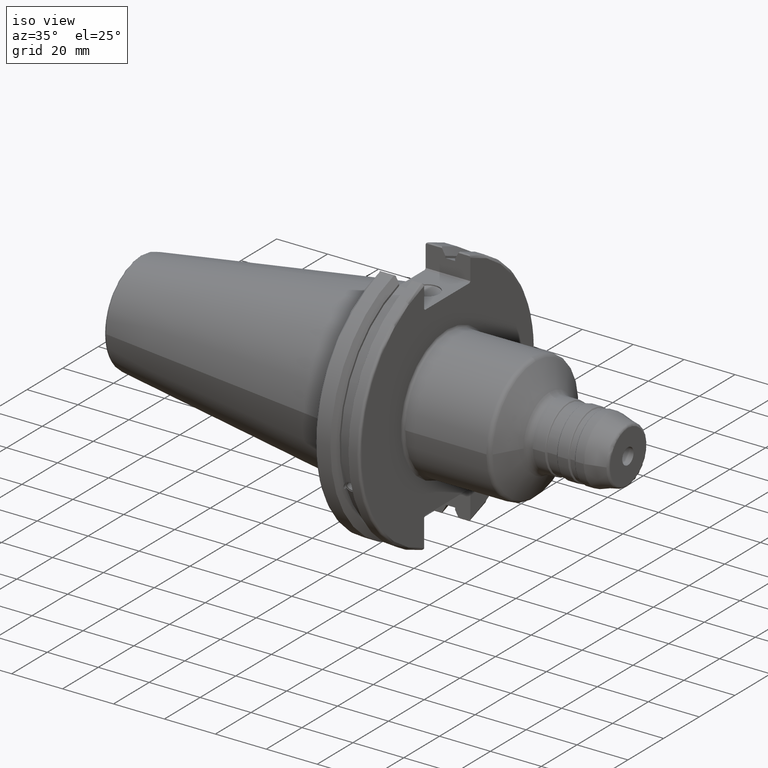
[diagram: clean part render]
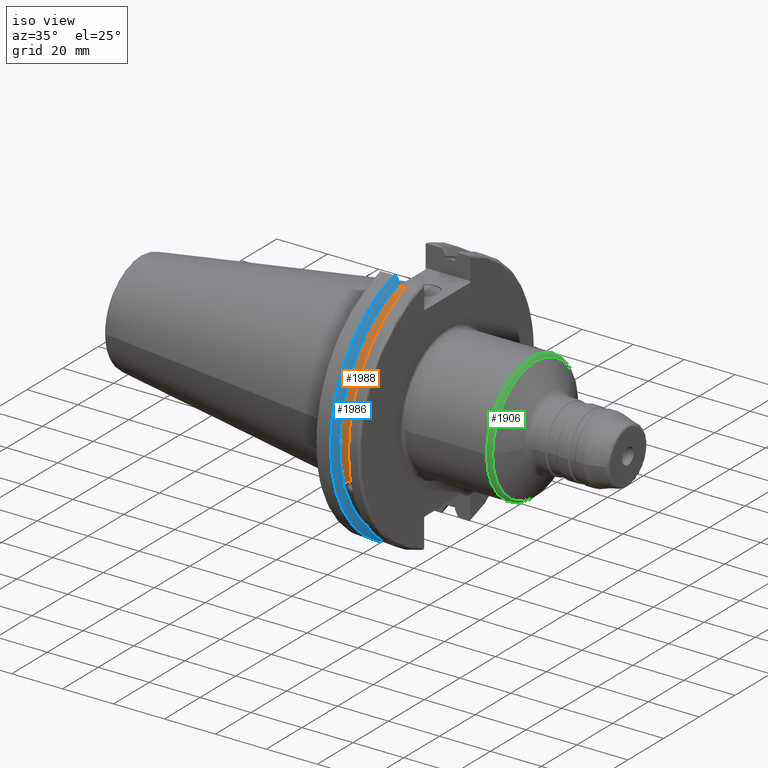
[diagram: same view with three faces highlighted in distinct colors, each labeled with its STEP entity id]
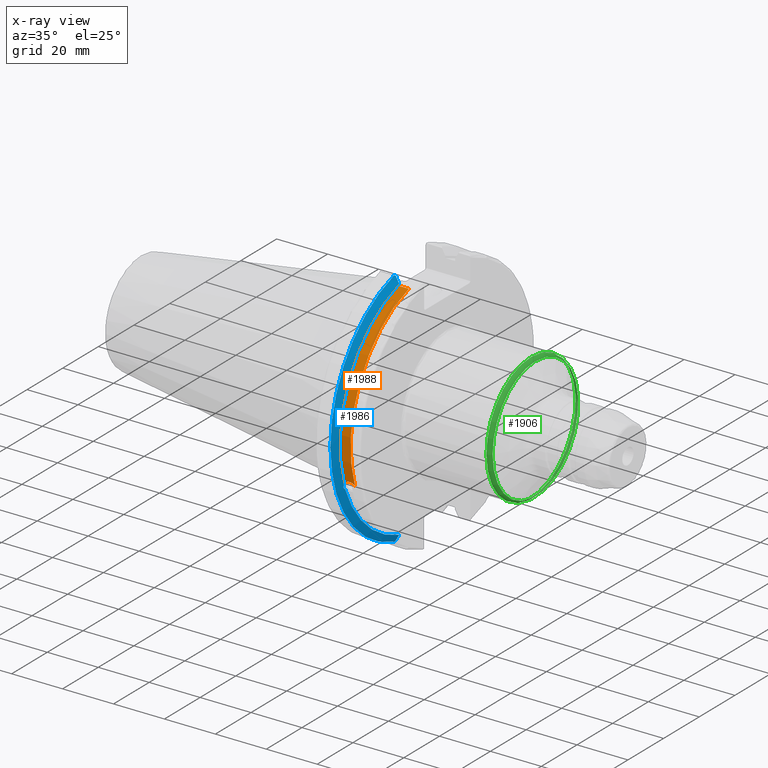
[diagram: x-ray of the same camera — body ghosted, the three highlighted faces saturated]
A machine part, iso view with three faces highlighted in distinct colors.
The next image is the same camera in x-ray (body ghosted, the three faces saturated) — at least one of them is partly hidden behind the body in this view.
Their STEP definitions:

[orange] entity #1988 — the highlighted cylindrical surface (partial cylindrical patch) has radius 45.6435 mm, axis along (1, 0, 0).
#45=B_SPLINE_CURVE_WITH_KNOTS('',3,(#3268,#3269,#3270,#3271,#3272,#3273,
#3274,#3275,#3276,#3277,#3278,#3279,#3280,#3281),.UNSPECIFIED.,.F.,.F.,
(4,2,2,2,2,2,4),(0.40154831257669,0.474697095495631,0.553813286063443,0.632929476631254,
0.712045667199066,0.791161857766877,0.864310640685818),.UNSPECIFIED.);
#217=LINE('',#3730,#323);
#323=VECTOR('',#2674,10.);
#394=CYLINDRICAL_SURFACE('',#2254,45.6435);
#502=FACE_OUTER_BOUND('',#629,.T.);
#629=EDGE_LOOP('',(#1849,#1850,#1851,#1852));
#764=CIRCLE('',#2253,45.6435);
#765=CIRCLE('',#2255,45.6435);
#853=VERTEX_POINT('',#3265);
#854=VERTEX_POINT('',#3267);
#924=VERTEX_POINT('',#3727);
#925=VERTEX_POINT('',#3729);
#1087=EDGE_CURVE('',#854,#853,#45,.T.);
#1183=EDGE_CURVE('',#925,#924,#217,.T.);
#1261=EDGE_CURVE('',#924,#854,#764,.T.);
#1262=EDGE_CURVE('',#925,#853,#765,.T.);
#1849=ORIENTED_EDGE('',*,*,#1087,.T.);
#1850=ORIENTED_EDGE('',*,*,#1262,.F.);
#1851=ORIENTED_EDGE('',*,*,#1183,.T.);
#1852=ORIENTED_EDGE('',*,*,#1261,.T.);
#1988=ADVANCED_FACE('',(#502),#394,.T.);
#2253=AXIS2_PLACEMENT_3D('',#3938,#2843,#2844);
#2254=AXIS2_PLACEMENT_3D('',#3939,#2845,#2846);
#2255=AXIS2_PLACEMENT_3D('',#3940,#2847,#2848);
#2674=DIRECTION('',(-1.,0.,0.));
#2843=DIRECTION('center_axis',(1.,0.,0.));
#2844=DIRECTION('ref_axis',(0.,0.,-1.));
#2845=DIRECTION('center_axis',(1.,0.,0.));
#2846=DIRECTION('ref_axis',(0.,-0.888619069115281,0.458645996390125));
#2847=DIRECTION('center_axis',(1.,0.,0.));
#2848=DIRECTION('ref_axis',(0.,0.,-1.));
#3265=CARTESIAN_POINT('',(13.0491,-43.1779814500336,-14.7983448449669));
#3267=CARTESIAN_POINT('',(9.2191,-43.1779814500336,-14.7983448449669));
#3268=CARTESIAN_POINT('Ctrl Pts',(9.2191,-43.1779814500335,-14.7983448449669));
#3269=CARTESIAN_POINT('Ctrl Pts',(9.32532177598176,-43.2545173750974,-14.5750315766731));
#3270=CARTESIAN_POINT('Ctrl Pts',(9.47680807557666,-43.3223492818373,-14.3712521044637));
#3271=CARTESIAN_POINT('Ctrl Pts',(9.83560503400179,-43.4340904392251,-14.0300988117073));
#3272=CARTESIAN_POINT('Ctrl Pts',(10.0717203280543,-43.4832903960863,-13.8760243976176));
#3273=CARTESIAN_POINT('Ctrl Pts',(10.5891059167872,-43.54802519266,-13.6715068146718));
#3274=CARTESIAN_POINT('Ctrl Pts',(10.870379364774,-43.5636826100883,-13.6211104428929));
#3275=CARTESIAN_POINT('Ctrl Pts',(11.397820635226,-43.5636826100883,-13.6211104428929));
#3276=CARTESIAN_POINT('Ctrl Pts',(11.6790940832128,-43.54802519266,-13.6715068146718));
#3277=CARTESIAN_POINT('Ctrl Pts',(12.1964796719457,-43.4832903960863,-13.8760243976176));
#3278=CARTESIAN_POINT('Ctrl Pts',(12.4325949659982,-43.4340904392251,-14.0300988117073));
#3279=CARTESIAN_POINT('Ctrl Pts',(12.7913919244233,-43.3223492818373,-14.3712521044637));
#3280=CARTESIAN_POINT('Ctrl Pts',(12.9428782240182,-43.2545173750974,-14.5750315766731));
#3281=CARTESIAN_POINT('Ctrl Pts',(13.0491,-43.1779814500335,-14.7983448449669));
#3727=CARTESIAN_POINT('',(9.2191,-12.95,43.7678716897452));
#3729=CARTESIAN_POINT('',(13.0491,-12.95,43.7678716897452));
#3730=CARTESIAN_POINT('',(11.1341,-12.95,43.7678716897452));
#3938=CARTESIAN_POINT('Origin',(9.2191,0.,0.));
#3939=CARTESIAN_POINT('Origin',(11.1341,0.,0.));
#3940=CARTESIAN_POINT('Origin',(13.0491,0.,0.));

[blue] entity #1986 — the highlighted conical surface has half-angle 60 deg.
#25=(
BOUNDED_CURVE()
B_SPLINE_CURVE(2,(#3724,#3725,#3726),.UNSPECIFIED.,.F.,.F.)
B_SPLINE_CURVE_WITH_KNOTS((3,3),(0.,0.275823910672366),.UNSPECIFIED.)
CURVE()
GEOMETRIC_REPRESENTATION_ITEM()
RATIONAL_B_SPLINE_CURVE((1.,1.00038235575046,1.00012873636977))
REPRESENTATION_ITEM('')
);
#26=(
BOUNDED_CURVE()
B_SPLINE_CURVE(2,(#3736,#3737,#3738),.UNSPECIFIED.,.F.,.F.)
B_SPLINE_CURVE_WITH_KNOTS((3,3),(0.0558332664541804,0.331657177124506),
 .UNSPECIFIED.)
CURVE()
GEOMETRIC_REPRESENTATION_ITEM()
RATIONAL_B_SPLINE_CURVE((1.00012873636289,1.00038235573002,1.))
REPRESENTATION_ITEM('')
);
#27=(
BOUNDED_CURVE()
B_SPLINE_CURVE(2,(#3775,#3776,#3777),.UNSPECIFIED.,.F.,.F.)
B_SPLINE_CURVE_WITH_KNOTS((3,3),(0.,0.0648240472896781),.UNSPECIFIED.)
CURVE()
GEOMETRIC_REPRESENTATION_ITEM()
RATIONAL_B_SPLINE_CURVE((1.,1.00011477674883,1.00019140646027))
REPRESENTATION_ITEM('')
);
#28=(
BOUNDED_CURVE()
B_SPLINE_CURVE(2,(#3783,#3784,#3785),.UNSPECIFIED.,.F.,.F.)
B_SPLINE_CURVE_WITH_KNOTS((3,3),(0.32526094493246,0.390084992222203),
 .UNSPECIFIED.)
CURVE()
GEOMETRIC_REPRESENTATION_ITEM()
RATIONAL_B_SPLINE_CURVE((1.0001914064594,1.00011477674832,1.))
REPRESENTATION_ITEM('')
);
#46=B_SPLINE_CURVE_WITH_KNOTS('',3,(#3285,#3286,#3287,#3288,#3289,#3290,
#3291,#3292,#3293,#3294,#3295,#3296,#3297,#3298),.UNSPECIFIED.,.F.,.F.,
(4,2,2,2,2,2,4),(0.426712868358728,0.441644498666906,0.48031331322313,0.518982127779354,
0.557650942335577,0.596319756891801,0.611251387199982),.UNSPECIFIED.);
#150=CONICAL_SURFACE('',#2250,47.8172386482472,1.0471975511966);
#500=FACE_OUTER_BOUND('',#627,.T.);
#627=EDGE_LOOP('',(#1837,#1838,#1839,#1840,#1841,#1842,#1843,#1844));
#721=CIRCLE('',#2151,46.4219772964944);
#740=CIRCLE('',#2194,49.2125);
#763=CIRCLE('',#2251,46.4219772964944);
#855=VERTEX_POINT('',#3282);
#856=VERTEX_POINT('',#3284);
#873=VERTEX_POINT('',#3376);
#922=VERTEX_POINT('',#3721);
#923=VERTEX_POINT('',#3723);
#926=VERTEX_POINT('',#3735);
#932=VERTEX_POINT('',#3773);
#933=VERTEX_POINT('',#3779);
#1089=EDGE_CURVE('',#856,#855,#46,.T.);
#1113=EDGE_CURVE('',#856,#873,#721,.T.);
#1181=EDGE_CURVE('',#923,#922,#25,.T.);
#1187=EDGE_CURVE('',#926,#873,#26,.T.);
#1197=EDGE_CURVE('',#932,#922,#27,.T.);
#1199=EDGE_CURVE('',#932,#933,#740,.T.);
#1200=EDGE_CURVE('',#926,#933,#28,.T.);
#1260=EDGE_CURVE('',#923,#855,#763,.T.);
#1837=ORIENTED_EDGE('',*,*,#1089,.T.);
#1838=ORIENTED_EDGE('',*,*,#1260,.F.);
#1839=ORIENTED_EDGE('',*,*,#1181,.T.);
#1840=ORIENTED_EDGE('',*,*,#1197,.F.);
#1841=ORIENTED_EDGE('',*,*,#1199,.T.);
#1842=ORIENTED_EDGE('',*,*,#1200,.F.);
#1843=ORIENTED_EDGE('',*,*,#1187,.T.);
#1844=ORIENTED_EDGE('',*,*,#1113,.F.);
#1986=ADVANCED_FACE('',(#500),#150,.T.);
#2151=AXIS2_PLACEMENT_3D('',#3377,#2575,#2576);
#2194=AXIS2_PLACEMENT_3D('',#3781,#2695,#2696);
#2250=AXIS2_PLACEMENT_3D('',#3935,#2837,#2838);
#2251=AXIS2_PLACEMENT_3D('',#3936,#2839,#2840);
#2575=DIRECTION('center_axis',(1.,0.,0.));
#2576=DIRECTION('ref_axis',(0.,0.,-1.));
#2695=DIRECTION('center_axis',(1.,0.,0.));
#2696=DIRECTION('ref_axis',(0.,0.,-1.));
#2837=DIRECTION('center_axis',(-1.,0.,0.));
#2838=DIRECTION('ref_axis',(0.,-1.,-1.22464679914735E-16));
#2839=DIRECTION('center_axis',(1.,0.,0.));
#2840=DIRECTION('ref_axis',(0.,0.,-1.));
#3282=CARTESIAN_POINT('',(9.2191,-43.9096390749305,-15.0646464421033));
#3284=CARTESIAN_POINT('',(9.21910000000001,-43.3201030900029,-16.6843832486479));
#3285=CARTESIAN_POINT('Ctrl Pts',(9.21909999999997,-43.3201030900029,-16.6843832486479));
#3286=CARTESIAN_POINT('Ctrl Pts',(9.2021184390339,-43.3613106941341,-16.6592273018006));
#3287=CARTESIAN_POINT('Ctrl Pts',(9.18608675403322,-43.4012416983557,-16.6326763251437));
#3288=CARTESIAN_POINT('Ctrl Pts',(9.13238673845037,-43.5391037343221,-16.5325130832406));
#3289=CARTESIAN_POINT('Ctrl Pts',(9.09621610663555,-43.6406982153491,-16.441180795372));
#3290=CARTESIAN_POINT('Ctrl Pts',(9.04690868251975,-43.8110833825827,-16.2291323464527));
#3291=CARTESIAN_POINT('Ctrl Pts',(9.0341,-43.8794096049168,-16.10796730316));
#3292=CARTESIAN_POINT('Ctrl Pts',(9.03409999999999,-43.9675796948952,-15.8657219718732));
#3293=CARTESIAN_POINT('Ctrl Pts',(9.04690868251975,-43.9931221605126,-15.7289849146254));
#3294=CARTESIAN_POINT('Ctrl Pts',(9.09621610663555,-43.9989016655819,-15.4570249042867));
#3295=CARTESIAN_POINT('Ctrl Pts',(9.13238673845037,-43.9797830409458,-15.3217566390708));
#3296=CARTESIAN_POINT('Ctrl Pts',(9.18608675403322,-43.9385582852181,-15.1564111356409));
#3297=CARTESIAN_POINT('Ctrl Pts',(9.2021184390339,-43.9250360001461,-15.1104047527575));
#3298=CARTESIAN_POINT('Ctrl Pts',(9.21909999999998,-43.9096390749305,-15.0646464421033));
#3376=CARTESIAN_POINT('',(9.2191,-12.95,-44.5791147973604));
#3377=CARTESIAN_POINT('Origin',(9.2191,0.,0.));
#3721=CARTESIAN_POINT('',(7.88638960562425,-12.95,46.9780755322918));
#3723=CARTESIAN_POINT('',(9.2191,-12.95,44.5791147973604));
#3724=CARTESIAN_POINT('Ctrl Pts',(9.2191,-12.95,44.5791147973604));
#3725=CARTESIAN_POINT('Ctrl Pts',(8.57020449052102,-12.95,45.7494966802823));
#3726=CARTESIAN_POINT('Ctrl Pts',(7.88638960562425,-12.95,46.9780755322918));
#3735=CARTESIAN_POINT('',(7.88638960562426,-12.95,-46.9780755322917));
#3736=CARTESIAN_POINT('Ctrl Pts',(7.88638960562426,-12.95,-46.9780755322917));
#3737=CARTESIAN_POINT('Ctrl Pts',(8.57020449050979,-12.95,-45.7494966803025));
#3738=CARTESIAN_POINT('Ctrl Pts',(9.2191,-12.95,-44.5791147973604));
#3773=CARTESIAN_POINT('',(7.60799096595127,-13.4317035994433,47.3440544806494));
#3775=CARTESIAN_POINT('Ctrl Pts',(7.60799096595127,-13.4317035994433,47.3440544806494));
#3776=CARTESIAN_POINT('Ctrl Pts',(7.7482689666383,-13.1896660169964,47.1601640966263));
#3777=CARTESIAN_POINT('Ctrl Pts',(7.88638960562425,-12.95,46.9780755322918));
#3779=CARTESIAN_POINT('',(7.60799096595127,-13.4317035994433,-47.3440544806494));
#3781=CARTESIAN_POINT('Origin',(7.60799096595127,0.,0.));
#3783=CARTESIAN_POINT('Ctrl Pts',(7.88638960562426,-12.95,-46.9780755322917));
#3784=CARTESIAN_POINT('Ctrl Pts',(7.74826896663821,-13.1896660169966,-47.1601640966264));
#3785=CARTESIAN_POINT('Ctrl Pts',(7.60799096595127,-13.4317035994433,-47.3440544806494));
#3935=CARTESIAN_POINT('Origin',(8.41354548297563,0.,0.));
#3936=CARTESIAN_POINT('Origin',(9.2191,0.,0.));

[green] entity #1906 — the highlighted toroidal blend (fillet) surface has major radius 23 mm and minor (blend) radius 2 mm.
#420=FACE_OUTER_BOUND('',#532,.T.);
#532=EDGE_LOOP('',(#1410,#1411,#1412,#1413,#1414,#1415));
#690=CIRCLE('',#2094,25.);
#691=CIRCLE('',#2095,25.);
#694=CIRCLE('',#2100,24.);
#695=CIRCLE('',#2101,24.);
#696=CIRCLE('',#2102,2.);
#812=VERTEX_POINT('',#2993);
#813=VERTEX_POINT('',#2994);
#826=VERTEX_POINT('',#3024);
#827=VERTEX_POINT('',#3025);
#1032=EDGE_CURVE('',#812,#813,#690,.T.);
#1034=EDGE_CURVE('',#813,#812,#691,.T.);
#1047=EDGE_CURVE('',#826,#827,#694,.T.);
#1048=EDGE_CURVE('',#827,#826,#695,.T.);
#1049=EDGE_CURVE('',#826,#813,#696,.T.);
#1410=ORIENTED_EDGE('',*,*,#1047,.T.);
#1411=ORIENTED_EDGE('',*,*,#1048,.T.);
#1412=ORIENTED_EDGE('',*,*,#1049,.T.);
#1413=ORIENTED_EDGE('',*,*,#1034,.T.);
#1414=ORIENTED_EDGE('',*,*,#1032,.T.);
#1415=ORIENTED_EDGE('',*,*,#1049,.F.);
#1874=TOROIDAL_SURFACE('',#2099,23.,2.);
#1906=ADVANCED_FACE('',(#420),#1874,.T.);
#2094=AXIS2_PLACEMENT_3D('',#2995,#2430,#2431);
#2095=AXIS2_PLACEMENT_3D('',#2997,#2433,#2434);
#2099=AXIS2_PLACEMENT_3D('',#3023,#2451,#2452);
#2100=AXIS2_PLACEMENT_3D('',#3026,#2453,#2454);
#2101=AXIS2_PLACEMENT_3D('',#3027,#2455,#2456);
#2102=AXIS2_PLACEMENT_3D('',#3028,#2457,#2458);
#2430=DIRECTION('center_axis',(1.,0.,0.));
#2431=DIRECTION('ref_axis',(0.,-1.,1.83697019872103E-16));
#2433=DIRECTION('center_axis',(1.,0.,0.));
#2434=DIRECTION('ref_axis',(0.,-1.,1.83697019872103E-16));
#2451=DIRECTION('center_axis',(1.,0.,0.));
#2452=DIRECTION('ref_axis',(0.,0.,-1.));
#2453=DIRECTION('center_axis',(-1.,0.,0.));
#2454=DIRECTION('ref_axis',(0.,-1.,3.06161699786838E-17));
#2455=DIRECTION('center_axis',(-1.,0.,0.));
#2456=DIRECTION('ref_axis',(0.,-1.,3.06161699786838E-17));
#2457=DIRECTION('center_axis',(0.,-1.,-1.22464679914735E-16));
#2458=DIRECTION('ref_axis',(0.,-1.22464679914735E-16,1.));
#2993=CARTESIAN_POINT('',(51.9170962313452,-25.,-3.06161699786838E-15));
#2994=CARTESIAN_POINT('',(51.9170962313452,-3.06161699786838E-15,25.));
#2995=CARTESIAN_POINT('Origin',(51.9170962313452,0.,0.));
#2997=CARTESIAN_POINT('Origin',(51.9170962313452,0.,0.));
#3023=CARTESIAN_POINT('Origin',(51.9170962313452,0.,0.));
#3024=CARTESIAN_POINT('',(53.6491470389141,-2.93915231795365E-15,24.));
#3025=CARTESIAN_POINT('',(53.6491470389141,-24.,-2.93915231795365E-15));
#3026=CARTESIAN_POINT('Origin',(53.6491470389141,0.,-3.67394039744206E-15));
#3027=CARTESIAN_POINT('Origin',(53.6491470389141,0.,-3.67394039744206E-15));
#3028=CARTESIAN_POINT('Origin',(51.9170962313452,-2.81668763803891E-15,
23.));